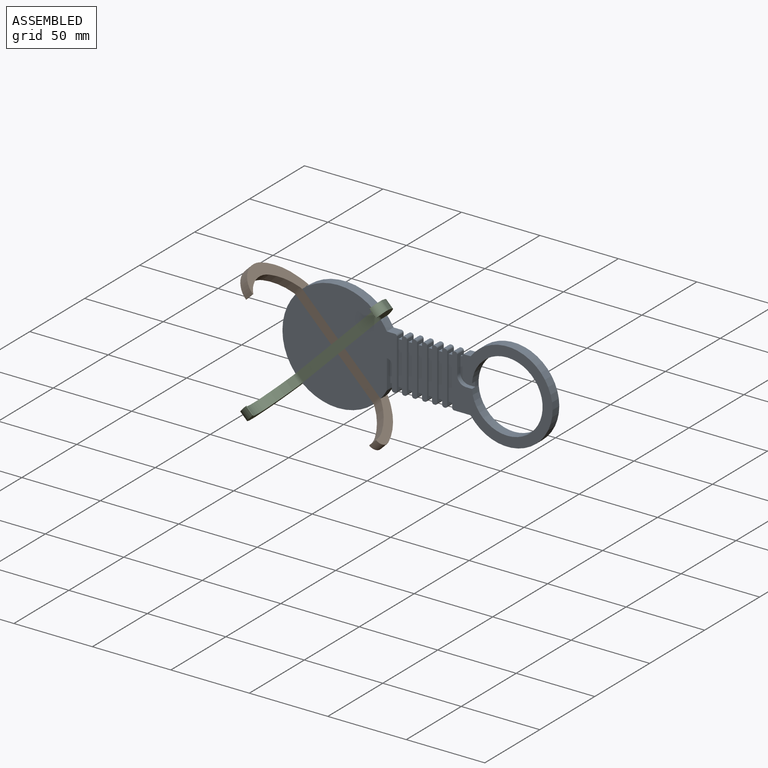
[diagram: assembled view]
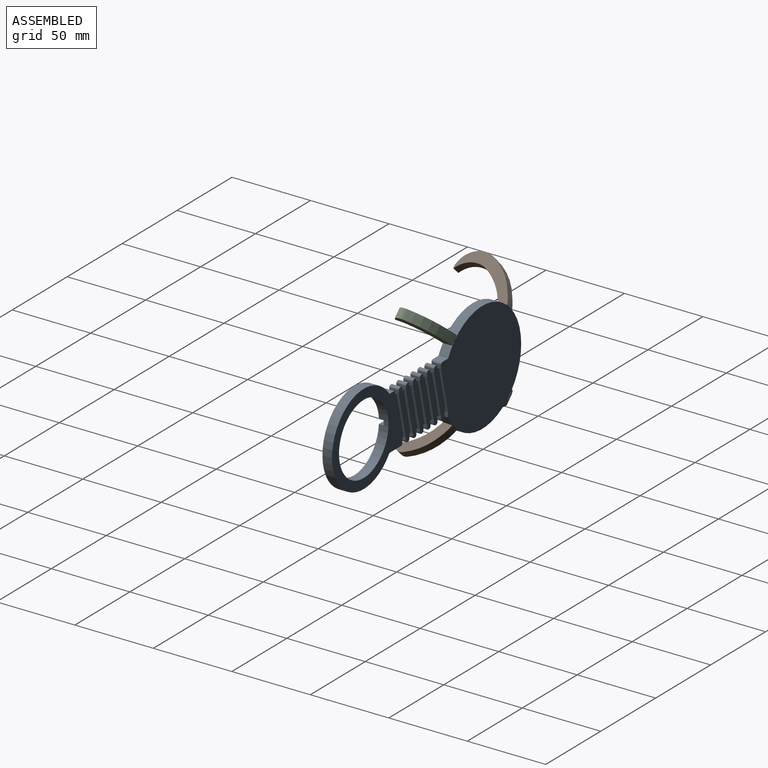
[diagram: assembled view, second angle]
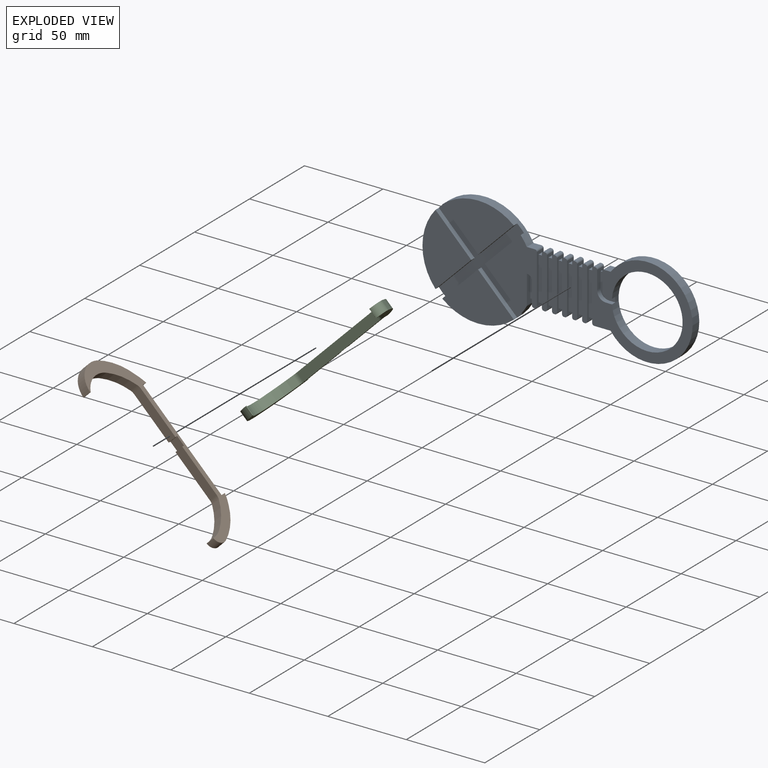
[diagram: exploded view]
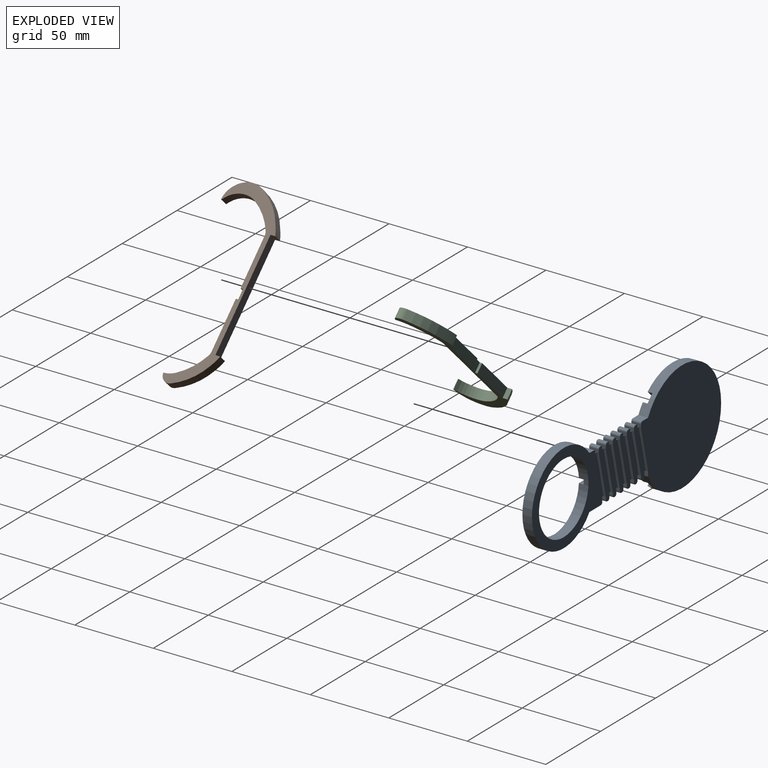
[diagram: exploded view, second angle]
ASSEMBLY  parts=3 mates=2
PART A: 137 faces, bbox 172.1x6.1x70.9 mm
  f0: plane 33.99x9.6mm, normal (0,1,0), area 107.4mm2, adj f32,f38,f74,f76,f77,f79,f97,f101
  f1: plane 33.99x9.6mm, normal (0,1,0), area 107.4mm2, adj f33,f37,f77,f79,f80,f82,f94,f98
  f2: plane 33.99x9.6mm, normal (0,1,0), area 107.4mm2, adj f30,f40,f58,f70,f71,f73,f103,f107
  f3: plane 33.99x9.6mm, normal (0,1,0), area 107.4mm2, adj f31,f39,f71,f73,f74,f76,f100,f104
  f4: plane 33.99x9.6mm, normal (0,1,0), area 107.4mm2, adj f34,f36,f80,f82,f83,f85,f91,f95
  f5: plane 33.99x9.6mm, normal (0,1,0), area 107.4mm2, adj f28,f35,f50,f83,f85,f86,f88,f92
  f6: plane 63.99x57.79mm, normal (0,1,0), area 1187.6mm2, adj f29,f41,f43,f48,f57,f70,f106,f122
  f7: plane 3.2x3.05mm, normal (0,0,-1), area 9.8mm2, adj f85,f86,f87,f93
  f8: plane 3.2x3.05mm, normal (0,0,-1), area 9.8mm2, adj f82,f83,f84,f96
  f9: plane 3.2x3.05mm, normal (0,0,-1), area 9.8mm2, adj f79,f80,f81,f99
  f10: plane 3.2x3.05mm, normal (0,0,-1), area 9.8mm2, adj f76,f77,f78,f102
  f11: plane 3.2x3.05mm, normal (0,0,-1), area 9.8mm2, adj f73,f74,f75,f105
  f12: plane 3.2x3.05mm, normal (0,0,-1), area 9.8mm2, adj f70,f71,f72,f108
  f13: plane 3.2x1.52mm, normal (0,0,1), area 4.9mm2, adj f57,f58,f60,f108
  f14: plane 3.2x3.05mm, normal (0,0,1), area 9.8mm2, adj f70,f71,f72,f105
  f15: plane 3.2x3.05mm, normal (0,0,1), area 9.8mm2, adj f73,f74,f75,f102
  f16: plane 3.2x3.05mm, normal (0,0,1), area 9.8mm2, adj f76,f77,f78,f99
  f17: plane 3.2x3.05mm, normal (0,0,1), area 9.8mm2, adj f79,f80,f81,f96
  f18: plane 3.2x3.05mm, normal (0,0,1), area 9.8mm2, adj f82,f83,f84,f93
  f19: plane 3.2x3.05mm, normal (0,0,1), area 9.8mm2, adj f85,f86,f87,f90
  f20: plane 3.2x1.52mm, normal (0,0,-1), area 4.9mm2, adj f50,f52,f53,f90
  f21: plane 45.61x33.18mm, normal (0,-1,0), area 839.2mm2, adj f28,f47,f49,f50,f51,f52,f65,f66
  f22: plane 33.99x3.2mm, normal (0,-1,0), area 107.4mm2, adj f34,f35,f83,f85,f110,f111,f132,f134
  f23: plane 33.99x3.2mm, normal (0,-1,0), area 107.4mm2, adj f33,f36,f80,f82,f112,f113,f130,f131
  f24: plane 33.99x3.2mm, normal (0,-1,0), area 107.4mm2, adj f32,f37,f77,f79,f114,f115,f128,f129
  f25: plane 33.99x3.2mm, normal (0,-1,0), area 107.4mm2, adj f31,f38,f74,f76,f116,f117,f126,f127
  f26: plane 33.99x3.2mm, normal (0,-1,0), area 107.4mm2, adj f30,f39,f71,f73,f118,f119,f124,f125
  f27: plane 63.99x57.79mm, normal (0,-1,0), area 1221.9mm2, adj f29,f40,f41,f43,f48,f54,f55,f56
  f28: plane 6.1x0.66mm, normal (0,0,-1), area 4mm2, adj f5,f21,f133,f135
  f29: plane 10.47x6.1mm, normal (0,0,-1), area 63.8mm2, adj f6,f27,f48,f123
  f30: plane 6.1x0.66mm, normal (0,0,-1), area 4mm2, adj f2,f26,f124,f125
  f31: plane 6.1x0.66mm, normal (0,0,-1), area 4mm2, adj f3,f25,f126,f127
  f32: plane 6.1x0.66mm, normal (0,0,-1), area 4mm2, adj f0,f24,f128,f129
  f33: plane 6.1x0.66mm, normal (0,0,-1), area 4mm2, adj f1,f23,f130,f131
  f34: plane 6.1x0.66mm, normal (0,0,-1), area 4mm2, adj f4,f22,f132,f134
  f35: plane 6.1x0.66mm, normal (0,0,1), area 4mm2, adj f5,f22,f110,f111
  f36: plane 6.1x0.66mm, normal (0,0,1), area 4mm2, adj f4,f23,f112,f113
  f37: plane 6.1x0.66mm, normal (0,0,1), area 4mm2, adj f1,f24,f114,f115
  f38: plane 6.1x0.66mm, normal (0,0,1), area 4mm2, adj f0,f25,f116,f117
  f39: plane 6.1x0.66mm, normal (0,0,1), area 4mm2, adj f3,f26,f118,f119
  f40: plane 6.1x0.66mm, normal (0,0,1), area 4mm2, adj f2,f27,f120,f121
  f41: plane 6.1x4.06mm, normal (0,0,1), area 24.8mm2, adj f6,f27,f48,f122
  f42: plane 72.93x70.87mm, normal (0,1,0), area 3953.1mm2, adj f47,f49,f52,f86,f89,f109,f136
  f43: cylinder r=22.54mm len=45.09mm, axis (0,1,0), area 853.7mm2, adj f6,f27,f54,f55,f60
  f44: plane 45.61x31.12mm, normal (0,-1,0), area 779.6mm2, adj f47,f61,f62
  f45: plane 45.61x31.12mm, normal (0,-1,0), area 779.6mm2, adj f47,f67,f68
  f46: plane 45.61x31.12mm, normal (0,-1,0), area 779.6mm2, adj f47,f63,f64
  f47: cylinder r=35.43mm len=70.87mm, axis (0,1,0), area 1064.6mm2, adj f21,f42,f44,f45,f46,f49,f61,f62
  f48: cylinder r=28.89mm len=57.79mm, axis (0,1,0), area 885.2mm2, adj f6,f27,f29,f41
  f49: plane 6.1x5.13mm, normal (0,0,1), area 31.3mm2, adj f21,f42,f47,f109
  f50: plane 14.12x6.1mm, normal (-1,0,0), area 48.9mm2, adj f5,f20,f21,f51,f53,f88,f135
  f51: cylinder r=3.2mm len=3.2mm, axis (0,-1,0), area 15.3mm2, adj f21,f50,f52,f53
  f52: plane 18.27x6.1mm, normal (1,0,0), area 64.4mm2, adj f20,f21,f42,f51,f53,f89,f136
  f53: plane 15.39x3.2mm, normal (0,-1,0), area 47.1mm2, adj f20,f50,f51,f52
  f54: plane 3.81x3.05mm, normal (0,0,1), area 11.6mm2, adj f27,f43,f59,f60
  f55: plane 3.81x3.05mm, normal (0,0,-1), area 11.6mm2, adj f27,f43,f56,f60
  f56: cylinder r=2.41mm len=3.05mm, axis (0,-1,0), area 11.5mm2, adj f27,f55,f57,f60
  f57: plane 11.72x6.1mm, normal (-1,0,0), area 41.6mm2, adj f6,f13,f27,f56,f60,f106,f122
  f58: plane 11.72x6.1mm, normal (1,0,0), area 41.6mm2, adj f2,f13,f27,f59,f60,f107,f121
  f59: cylinder r=5.61mm len=5.61mm, axis (0,-1,0), area 26.8mm2, adj f27,f54,f58,f60
  f60: plane 15.39x9.42mm, normal (0,-1,0), area 63.5mm2, adj f13,f43,f54,f55,f56,f57,f58,f59
  f61: plane 22.81x22.81mm, normal (0.71,0,0.71), area 98.3mm2, adj f44,f47,f62,f69
  f62: plane 22.81x22.81mm, normal (0.71,0,-0.71), area 98.3mm2, adj f44,f47,f61,f69
  f63: plane 22.81x22.81mm, normal (-0.71,0,0.71), area 98.3mm2, adj f46,f47,f64,f69
  f64: plane 22.81x22.81mm, normal (0.71,0,0.71), area 98.3mm2, adj f46,f47,f63,f69
  f65: plane 22.81x22.81mm, normal (-0.71,0,-0.71), area 98.3mm2, adj f21,f47,f66,f69
  f66: plane 22.81x22.81mm, normal (-0.71,0,0.71), area 98.3mm2, adj f21,f47,f65,f69
  f67: plane 22.81x22.81mm, normal (0.71,0,-0.71), area 98.3mm2, adj f45,f47,f68,f69
  f68: plane 22.81x22.81mm, normal (-0.71,0,-0.71), area 98.3mm2, adj f45,f47,f67,f69
  f69: plane 54.23x54.23mm, normal (0,-1,0), area 825.8mm2, adj f47,f61,f62,f63,f64,f65,f66,f67
  f70: plane 31.45x6.1mm, normal (-1,0,0), area 65.6mm2, adj f2,f6,f12,f14,f27,f72,f103,f106
  f71: plane 31.45x6.1mm, normal (1,0,0), area 65.6mm2, adj f2,f3,f12,f14,f26,f72,f104,f107
  f72: plane 27.58x3.2mm, normal (0,-1,0), area 88.3mm2, adj f12,f14,f70,f71
  f73: plane 31.45x6.1mm, normal (-1,0,0), area 65.6mm2, adj f2,f3,f11,f15,f26,f75,f100,f103
  f74: plane 31.45x6.1mm, normal (1,0,0), area 65.6mm2, adj f0,f3,f11,f15,f25,f75,f101,f104
  f75: plane 27.58x3.2mm, normal (0,-1,0), area 88.3mm2, adj f11,f15,f73,f74
  f76: plane 31.45x6.1mm, normal (-1,0,0), area 65.6mm2, adj f0,f3,f10,f16,f25,f78,f97,f100
  f77: plane 31.45x6.1mm, normal (1,0,0), area 65.6mm2, adj f0,f1,f10,f16,f24,f78,f98,f101
  f78: plane 27.58x3.2mm, normal (0,-1,0), area 88.3mm2, adj f10,f16,f76,f77
  f79: plane 31.45x6.1mm, normal (-1,0,0), area 65.6mm2, adj f0,f1,f9,f17,f24,f81,f94,f97
  f80: plane 31.45x6.1mm, normal (1,0,0), area 65.6mm2, adj f1,f4,f9,f17,f23,f81,f95,f98
  f81: plane 27.58x3.2mm, normal (0,-1,0), area 88.3mm2, adj f9,f17,f79,f80
  f82: plane 31.45x6.1mm, normal (-1,0,0), area 65.6mm2, adj f1,f4,f8,f18,f23,f84,f91,f94
  f83: plane 31.45x6.1mm, normal (1,0,0), area 65.6mm2, adj f4,f5,f8,f18,f22,f84,f92,f95
  f84: plane 27.58x3.2mm, normal (0,-1,0), area 88.3mm2, adj f8,f18,f82,f83
  f85: plane 31.45x6.1mm, normal (-1,0,0), area 65.6mm2, adj f4,f5,f7,f19,f22,f87,f88,f91
  f86: plane 31.45x6.1mm, normal (1,0,0), area 65.6mm2, adj f5,f7,f19,f21,f42,f87,f89,f92
  f87: plane 27.58x3.2mm, normal (0,-1,0), area 88.3mm2, adj f7,f19,f85,f86
  f88: plane 27.58x6.4mm, normal (-0.97,0,0.23), area 43.2mm2, adj f5,f50,f85,f90
  f89: plane 27.58x6.4mm, normal (0.97,0,-0.23), area 43.2mm2, adj f42,f52,f86,f90
  f90: plane 27.58x9.6mm, normal (0,1,0), area 88.3mm2, adj f19,f20,f88,f89
  f91: plane 27.58x6.4mm, normal (-0.97,0,0.23), area 43.2mm2, adj f4,f82,f85,f93
  f92: plane 27.58x6.4mm, normal (0.97,0,-0.23), area 43.2mm2, adj f5,f83,f86,f93
  f93: plane 27.58x9.6mm, normal (0,1,0), area 88.3mm2, adj f7,f18,f91,f92
  f94: plane 27.58x6.4mm, normal (-0.97,0,0.23), area 43.2mm2, adj f1,f79,f82,f96
  f95: plane 27.58x6.4mm, normal (0.97,0,-0.23), area 43.2mm2, adj f4,f80,f83,f96
  f96: plane 27.58x9.6mm, normal (0,1,0), area 88.3mm2, adj f8,f17,f94,f95
  f97: plane 27.58x6.4mm, normal (-0.97,0,0.23), area 43.2mm2, adj f0,f76,f79,f99
  f98: plane 27.58x6.4mm, normal (0.97,0,-0.23), area 43.2mm2, adj f1,f77,f80,f99
  f99: plane 27.58x9.6mm, normal (0,1,0), area 88.3mm2, adj f9,f16,f97,f98
  f100: plane 27.58x6.4mm, normal (-0.97,0,0.23), area 43.2mm2, adj f3,f73,f76,f102
  f101: plane 27.58x6.4mm, normal (0.97,0,-0.23), area 43.2mm2, adj f0,f74,f77,f102
  f102: plane 27.58x9.6mm, normal (0,1,0), area 88.3mm2, adj f10,f15,f100,f101
  f103: plane 27.58x6.4mm, normal (-0.97,0,0.23), area 43.2mm2, adj f2,f70,f73,f105
  f104: plane 27.58x6.4mm, normal (0.97,0,-0.23), area 43.2mm2, adj f3,f71,f74,f105
  f105: plane 27.58x9.6mm, normal (0,1,0), area 88.3mm2, adj f11,f14,f103,f104
  f106: plane 27.58x6.4mm, normal (-0.97,0,0.23), area 43.2mm2, adj f6,f57,f70,f108
  f107: plane 27.58x6.4mm, normal (0.97,0,-0.23), area 43.2mm2, adj f2,f58,f71,f108
  f108: plane 27.58x9.6mm, normal (0,1,0), area 88.3mm2, adj f12,f13,f106,f107
  f109: cylinder r=1.27mm len=6.1mm, axis (0,-1,0), area 12.2mm2, adj f21,f42,f49,f86
  f110: cylinder r=1.27mm len=6.1mm, axis (0,-1,0), area 12.2mm2, adj f5,f22,f35,f85
  f111: cylinder r=1.27mm len=6.1mm, axis (0,1,0), area 12.2mm2, adj f5,f22,f35,f83
  f112: cylinder r=1.27mm len=6.1mm, axis (0,-1,0), area 12.2mm2, adj f4,f23,f36,f82
  f113: cylinder r=1.27mm len=6.1mm, axis (0,1,0), area 12.2mm2, adj f4,f23,f36,f80
  f114: cylinder r=1.27mm len=6.1mm, axis (0,-1,0), area 12.2mm2, adj f1,f24,f37,f79
  f115: cylinder r=1.27mm len=6.1mm, axis (0,1,0), area 12.2mm2, adj f1,f24,f37,f77
  f116: cylinder r=1.27mm len=6.1mm, axis (0,-1,0), area 12.2mm2, adj f0,f25,f38,f76
  f117: cylinder r=1.27mm len=6.1mm, axis (0,1,0), area 12.2mm2, adj f0,f25,f38,f74
  f118: cylinder r=1.27mm len=6.1mm, axis (0,-1,0), area 12.2mm2, adj f3,f26,f39,f73
  f119: cylinder r=1.27mm len=6.1mm, axis (0,1,0), area 12.2mm2, adj f3,f26,f39,f71
  f120: cylinder r=1.27mm len=6.1mm, axis (0,-1,0), area 12.2mm2, adj f2,f27,f40,f70
  f121: cylinder r=1.27mm len=6.1mm, axis (0,1,0), area 12.2mm2, adj f2,f27,f40,f58
  f122: cylinder r=1.27mm len=6.1mm, axis (0,1,0), area 12.2mm2, adj f6,f27,f41,f57
  f123: cylinder r=1.27mm len=6.1mm, axis (0,1,0), area 12.2mm2, adj f6,f27,f29,f70
  f124: cylinder r=1.27mm len=6.1mm, axis (0,-1,0), area 12.2mm2, adj f2,f26,f30,f71
  f125: cylinder r=1.27mm len=6.1mm, axis (0,1,0), area 12.2mm2, adj f2,f26,f30,f73
  f126: cylinder r=1.27mm len=6.1mm, axis (0,-1,0), area 12.2mm2, adj f3,f25,f31,f74
  f127: cylinder r=1.27mm len=6.1mm, axis (0,1,0), area 12.2mm2, adj f3,f25,f31,f76
  f128: cylinder r=1.27mm len=6.1mm, axis (0,-1,0), area 12.2mm2, adj f0,f24,f32,f77
  f129: cylinder r=1.27mm len=6.1mm, axis (0,1,0), area 12.2mm2, adj f0,f24,f32,f79
  f130: cylinder r=1.27mm len=6.1mm, axis (0,-1,0), area 12.2mm2, adj f1,f23,f33,f80
  f131: cylinder r=1.27mm len=6.1mm, axis (0,1,0), area 12.2mm2, adj f1,f23,f33,f82
  f132: cylinder r=1.27mm len=6.1mm, axis (0,-1,0), area 12.2mm2, adj f4,f22,f34,f83
  f133: cylinder r=1.27mm len=6.1mm, axis (0,1,0), area 12.2mm2, adj f5,f21,f28,f86
  f134: cylinder r=1.27mm len=6.1mm, axis (0,1,0), area 12.2mm2, adj f4,f22,f34,f85
  f135: cylinder r=1.27mm len=6.1mm, axis (0,-1,0), area 12.2mm2, adj f5,f21,f28,f50
  f136: cylinder r=1.27mm len=6.1mm, axis (0,1,0), area 3.9mm2, adj f21,f42,f47,f52
PART B: 27 faces, bbox 40x6.1x117 mm
  f0: cylinder r=35.56mm len=18.07mm, axis (0,1,0), area 153.7mm2, adj f17,f18,f23,f24
  f1: cylinder r=30.9mm len=6.16mm, axis (0,1,0), area 41.7mm2, adj f2,f17,f18,f24
  f2: plane 6.1x3.05mm, normal (0,0,1), area 18.6mm2, adj f1,f3,f17,f18
  f3: plane 70.87x6.1mm, normal (1,0,0), area 432mm2, adj f2,f4,f17,f18
  f4: plane 6.1x3.05mm, normal (0,0,-1), area 18.6mm2, adj f3,f5,f17,f18
  f5: cylinder r=30.9mm len=6.29mm, axis (0,1,0), area 42.6mm2, adj f4,f17,f18,f19
  f6: cylinder r=35.56mm len=17.78mm, axis (0,1,0), area 145.1mm2, adj f17,f18,f19,f20
  f7: cylinder r=14.46mm len=6.8mm, axis (0,1,0), area 43.3mm2, adj f8,f17,f18,f25
  f8: cylinder r=35.56mm len=14.05mm, axis (0,1,0), area 122.5mm2, adj f7,f17,f18,f21
  f9: plane 31.14x6.1mm, normal (-1,0,0), area 189.8mm2, adj f10,f17,f18,f21
  f10: plane 6.1x1.52mm, normal (0,0,-1), area 9.3mm2, adj f9,f11,f17,f18
  f11: plane 6.1x6.1mm, normal (-1,0,0), area 37.2mm2, adj f10,f12,f17,f18
  f12: plane 6.1x1.52mm, normal (0,0,1), area 9.3mm2, adj f11,f13,f17,f18
  f13: plane 31.14x6.1mm, normal (-1,0,0), area 189.8mm2, adj f12,f17,f18,f22
  f14: cylinder r=35.56mm len=14.05mm, axis (0,1,0), area 122.5mm2, adj f15,f17,f18,f22
  f15: cylinder r=14.46mm len=18.81mm, axis (0,1,0), area 128.9mm2, adj f14,f17,f18,f26
  f16: cylinder r=14.04mm len=18.4mm, axis (0,1,0), area 156.1mm2, adj f17,f18,f23,f26
  f17: plane 116.98x39.99mm, normal (0,-1,0), area 688mm2, adj f0,f1,f2,f3,f4,f5,f6,f7
  f18: plane 116.98x39.99mm, normal (0,1,0), area 688mm2, adj f0,f1,f2,f3,f4,f5,f6,f7
  f19: cylinder r=5.08mm len=6.1mm, axis (0,-1,0), area 0.9mm2, adj f5,f6,f17,f18
  f20: cylinder r=5.08mm len=6.9mm, axis (0,-1,0), area 57.1mm2, adj f6,f17,f18,f25
  f21: cylinder r=5.08mm len=6.1mm, axis (0,1,0), area 15.5mm2, adj f8,f9,f17,f18
  f22: cylinder r=5.08mm len=6.1mm, axis (0,1,0), area 15.5mm2, adj f13,f14,f17,f18
  f23: cylinder r=5.08mm len=6.1mm, axis (0,1,0), area 2.4mm2, adj f0,f16,f17,f18
  f24: cylinder r=5.08mm len=6.1mm, axis (0,-1,0), area 2.7mm2, adj f0,f1,f17,f18
  f25: cylinder r=0.25mm len=6.1mm, axis (0,-1,0), area 2.6mm2, adj f7,f17,f18,f20
  f26: cylinder r=0.25mm len=6.1mm, axis (0,-1,0), area 4mm2, adj f15,f16,f17,f18
PART C: 27 faces, bbox 40x6.1x117 mm
  f0: plane 32.39x6.1mm, normal (1,0,0), area 197.4mm2, adj f1,f16,f17,f18
  f1: plane 6.1x1.52mm, normal (0,0,1), area 9.3mm2, adj f0,f2,f17,f18
  f2: plane 6.1x6.1mm, normal (1,0,0), area 37.2mm2, adj f1,f3,f17,f18
  f3: plane 6.1x1.52mm, normal (0,0,-1), area 9.3mm2, adj f2,f4,f17,f18
  f4: plane 32.39x6.1mm, normal (1,0,0), area 197.4mm2, adj f3,f5,f17,f18
  f5: plane 6.1x3.05mm, normal (0,0,-1), area 18.6mm2, adj f4,f6,f17,f18
  f6: cylinder r=30.9mm len=6.29mm, axis (0,1,0), area 42.6mm2, adj f5,f17,f18,f19
  f7: cylinder r=35.56mm len=17.78mm, axis (0,1,0), area 145.1mm2, adj f17,f18,f19,f20
  f8: cylinder r=14.46mm len=6.8mm, axis (0,1,0), area 43.3mm2, adj f9,f17,f18,f25
  f9: cylinder r=35.56mm len=14.05mm, axis (0,1,0), area 122.5mm2, adj f8,f17,f18,f21
  f10: plane 68.37x6.1mm, normal (-1,0,0), area 416.8mm2, adj f17,f18,f21,f22
  f11: cylinder r=35.56mm len=14.05mm, axis (0,1,0), area 122.5mm2, adj f12,f17,f18,f22
  f12: cylinder r=14.46mm len=18.81mm, axis (0,1,0), area 128.9mm2, adj f11,f17,f18,f26
  f13: cylinder r=14.04mm len=18.4mm, axis (0,1,0), area 156.1mm2, adj f17,f18,f23,f26
  f14: cylinder r=35.56mm len=18.07mm, axis (0,1,0), area 153.7mm2, adj f17,f18,f23,f24
  f15: cylinder r=30.9mm len=6.16mm, axis (0,1,0), area 41.7mm2, adj f16,f17,f18,f24
  f16: plane 6.1x3.05mm, normal (0,0,1), area 18.6mm2, adj f0,f15,f17,f18
  f17: plane 116.98x39.99mm, normal (0,-1,0), area 688mm2, adj f0,f1,f2,f3,f4,f5,f6,f7
  f18: plane 116.98x39.99mm, normal (0,1,0), area 688mm2, adj f0,f1,f2,f3,f4,f5,f6,f7
  f19: cylinder r=5.08mm len=6.1mm, axis (0,-1,0), area 0.9mm2, adj f6,f7,f17,f18
  f20: cylinder r=5.08mm len=6.9mm, axis (0,-1,0), area 57.1mm2, adj f7,f17,f18,f25
  f21: cylinder r=5.08mm len=6.1mm, axis (0,1,0), area 15.5mm2, adj f9,f10,f17,f18
  f22: cylinder r=5.08mm len=6.1mm, axis (0,1,0), area 15.5mm2, adj f10,f11,f17,f18
  f23: cylinder r=5.08mm len=6.1mm, axis (0,1,0), area 2.4mm2, adj f13,f14,f17,f18
  f24: cylinder r=5.08mm len=6.1mm, axis (0,-1,0), area 2.7mm2, adj f14,f15,f17,f18
  f25: cylinder r=0.25mm len=6.1mm, axis (0,-1,0), area 2.6mm2, adj f8,f17,f18,f20
  f26: cylinder r=0.25mm len=6.1mm, axis (0,-1,0), area 4mm2, adj f12,f13,f17,f18
PLACE A at identity
PLACE B rot(axis=(0.68,0.68,0.28),148.6deg) t=(-47.12,-4.57,2.16)mm
PLACE C rot(axis=(0.36,0.36,0.86),98.4deg) t=(-51.43,-4.57,2.16)mm
MATE planar C.f2 <-> B.f11  axis (0,1,0) through (-49.28,-4.57,0)mm
MATE planar B.f3 <-> A.f47  axis (0,1,0) through (-49.28,-3.05,0)mm
